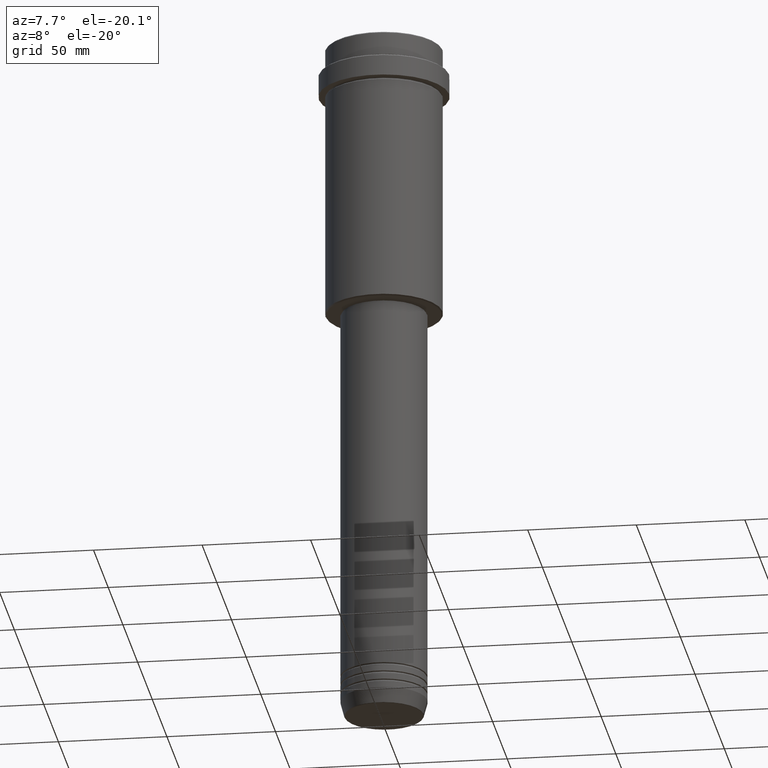
[diagram: clean part render]
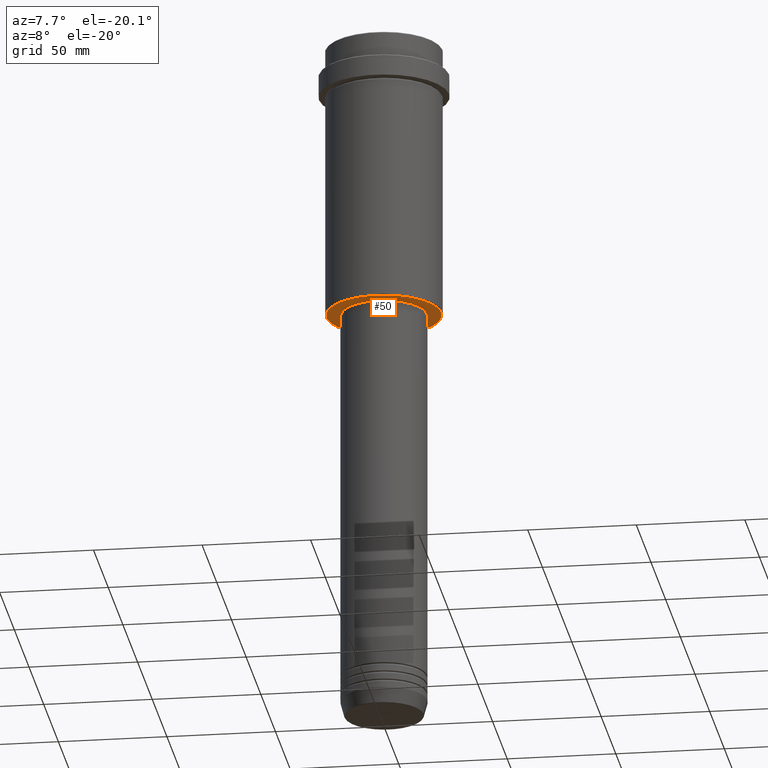
[diagram: same view with one face highlighted and labeled with its STEP entity id]
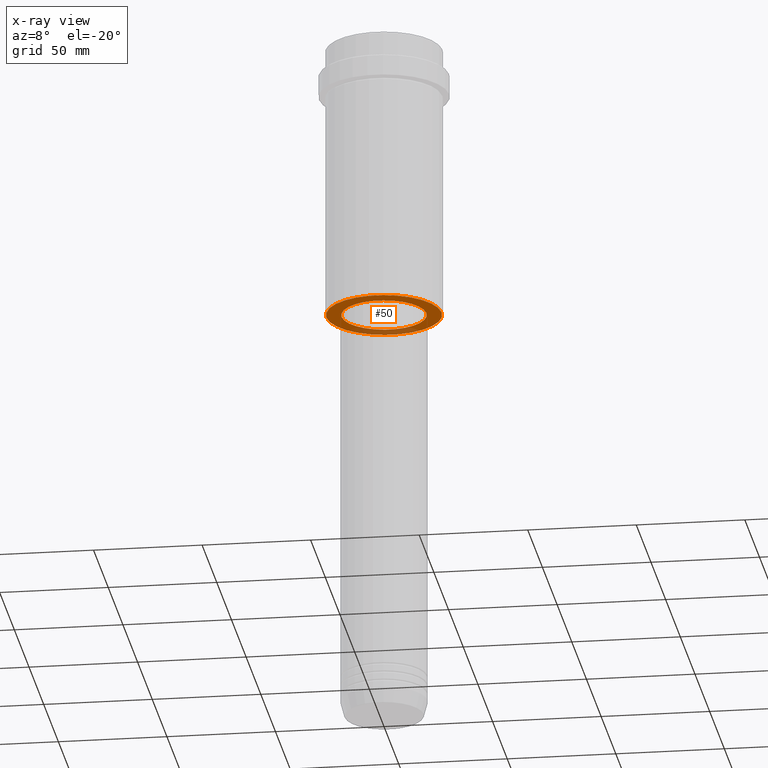
[diagram: x-ray of the same camera — body ghosted, the highlighted face saturated]
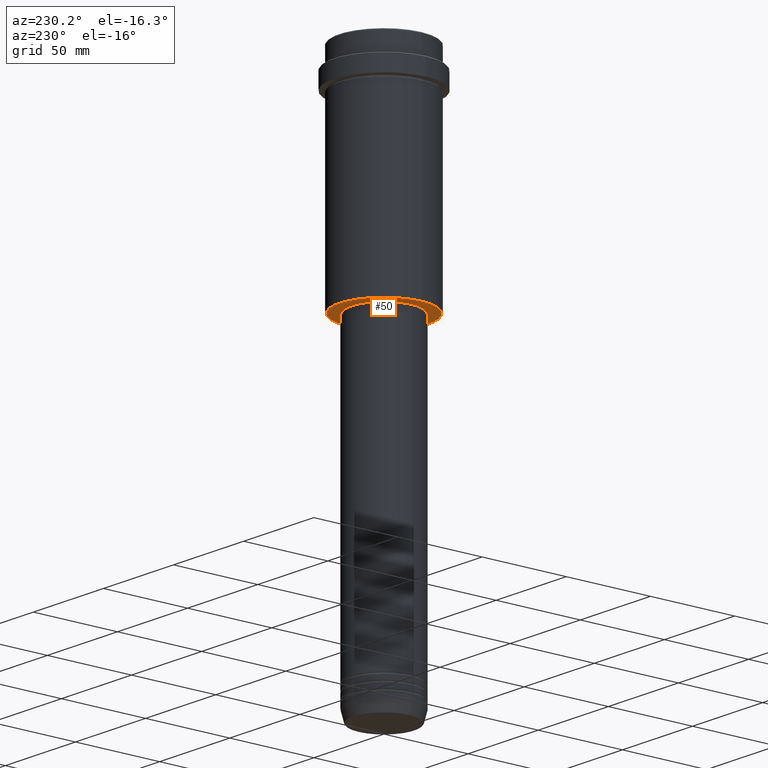
[diagram: same view with one face highlighted and labeled with its STEP entity id]
A machine part, auxiliary view. The second image highlights one B-rep face of the part: STEP entity #50.
The next image is the same camera in x-ray: the body ghosted, the highlighted face saturated — about 20% of this face is hidden behind the body in this view.
A second angle (auxiliary view) of the same face is appended — the face is thin or edge-on in the first view.
In plain terms, the highlighted planar face has unit normal (0, 0, -1).
Its self-contained STEP definition (entity closure, byte-faithful):
#32 = DIRECTION ( 'NONE',  ( 0.000000000000000000, 0.000000000000000000, -1.000000000000000000 ) ) ;
#45 = CIRCLE ( 'NONE', #512, 26.49999999999993960 ) ;
#50 = ADVANCED_FACE ( 'NONE', ( #601, #1316 ), #1202, .T. ) ;
#53 = CARTESIAN_POINT ( 'NONE',  ( -26.49999999999993960, 3.275930187719166002E-15, -128.0000000000000000 ) ) ;
#86 = CARTESIAN_POINT ( 'NONE',  ( 0.000000000000000000, 27.00000000000000000, -128.0000000000000000 ) ) ;
#189 = ORIENTED_EDGE ( 'NONE', *, *, #1223, .T. ) ;
#209 = CIRCLE ( 'NONE', #782, 19.50000000000000000 ) ;
#252 = EDGE_CURVE ( 'NONE', #1043, #602, #45, .T. ) ;
#308 = AXIS2_PLACEMENT_3D ( 'NONE', #86, #954, #1296 ) ;
#360 = CARTESIAN_POINT ( 'NONE',  ( 0.000000000000000000, 0.000000000000000000, -127.9999999999999716 ) ) ;
#384 = CARTESIAN_POINT ( 'NONE',  ( 19.50000000000000000, 0.000000000000000000, -127.9999999999999716 ) ) ;
#433 = EDGE_LOOP ( 'NONE', ( #727, #926 ) ) ;
#442 = CARTESIAN_POINT ( 'NONE',  ( 26.49999999999993960, 0.000000000000000000, -128.0000000000000000 ) ) ;
#511 = DIRECTION ( 'NONE',  ( 0.000000000000000000, 0.000000000000000000, -1.000000000000000000 ) ) ;
#512 = AXIS2_PLACEMENT_3D ( 'NONE', #1122, #32, #773 ) ;
#578 = CARTESIAN_POINT ( 'NONE',  ( 0.000000000000000000, 0.000000000000000000, -127.9999999999999716 ) ) ;
#581 = DIRECTION ( 'NONE',  ( -0.000000000000000000, -0.000000000000000000, 1.000000000000000000 ) ) ;
#589 = CARTESIAN_POINT ( 'NONE',  ( -19.50000000000000000, 2.388061258337338939E-15, -127.9999999999999716 ) ) ;
#601 = FACE_OUTER_BOUND ( 'NONE', #433, .T. ) ;
#602 = VERTEX_POINT ( 'NONE', #53 ) ;
#705 = AXIS2_PLACEMENT_3D ( 'NONE', #1070, #511, #960 ) ;
#727 = ORIENTED_EDGE ( 'NONE', *, *, #252, .T. ) ;
#752 = VERTEX_POINT ( 'NONE', #589 ) ;
#773 = DIRECTION ( 'NONE',  ( -1.000000000000000000, 0.000000000000000000, 0.000000000000000000 ) ) ;
#782 = AXIS2_PLACEMENT_3D ( 'NONE', #360, #1060, #1271 ) ;
#804 = CIRCLE ( 'NONE', #1373, 19.50000000000000000 ) ;
#826 = DIRECTION ( 'NONE',  ( 1.000000000000000000, 0.000000000000000000, 0.000000000000000000 ) ) ;
#855 = EDGE_CURVE ( 'NONE', #602, #1043, #1333, .T. ) ;
#926 = ORIENTED_EDGE ( 'NONE', *, *, #855, .T. ) ;
#954 = DIRECTION ( 'NONE',  ( 0.000000000000000000, 0.000000000000000000, -1.000000000000000000 ) ) ;
#960 = DIRECTION ( 'NONE',  ( -1.000000000000000000, 0.000000000000000000, 0.000000000000000000 ) ) ;
#985 = ORIENTED_EDGE ( 'NONE', *, *, #1314, .T. ) ;
#1043 = VERTEX_POINT ( 'NONE', #442 ) ;
#1060 = DIRECTION ( 'NONE',  ( -0.000000000000000000, -0.000000000000000000, 1.000000000000000000 ) ) ;
#1070 = CARTESIAN_POINT ( 'NONE',  ( 0.000000000000000000, 0.000000000000000000, -128.0000000000000000 ) ) ;
#1122 = CARTESIAN_POINT ( 'NONE',  ( 0.000000000000000000, 0.000000000000000000, -128.0000000000000000 ) ) ;
#1202 = PLANE ( 'NONE',  #308 ) ;
#1217 = VERTEX_POINT ( 'NONE', #384 ) ;
#1223 = EDGE_CURVE ( 'NONE', #752, #1217, #209, .T. ) ;
#1271 = DIRECTION ( 'NONE',  ( 1.000000000000000000, 0.000000000000000000, 0.000000000000000000 ) ) ;
#1296 = DIRECTION ( 'NONE',  ( -1.000000000000000000, 0.000000000000000000, -0.000000000000000000 ) ) ;
#1314 = EDGE_CURVE ( 'NONE', #1217, #752, #804, .T. ) ;
#1316 = FACE_BOUND ( 'NONE', #1342, .T. ) ;
#1333 = CIRCLE ( 'NONE', #705, 26.49999999999993960 ) ;
#1342 = EDGE_LOOP ( 'NONE', ( #985, #189 ) ) ;
#1373 = AXIS2_PLACEMENT_3D ( 'NONE', #578, #581, #826 ) ;